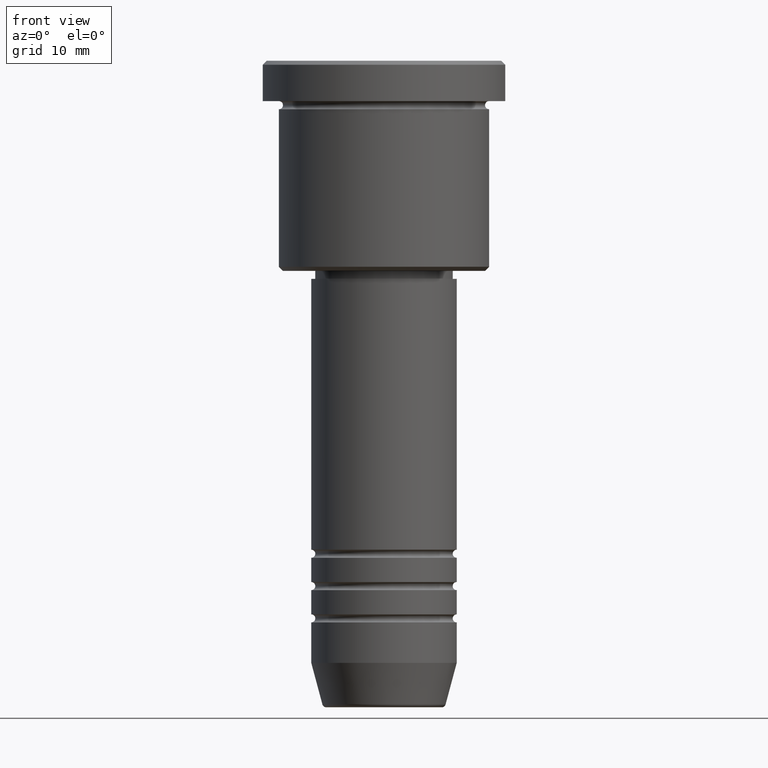
[diagram: clean part render]
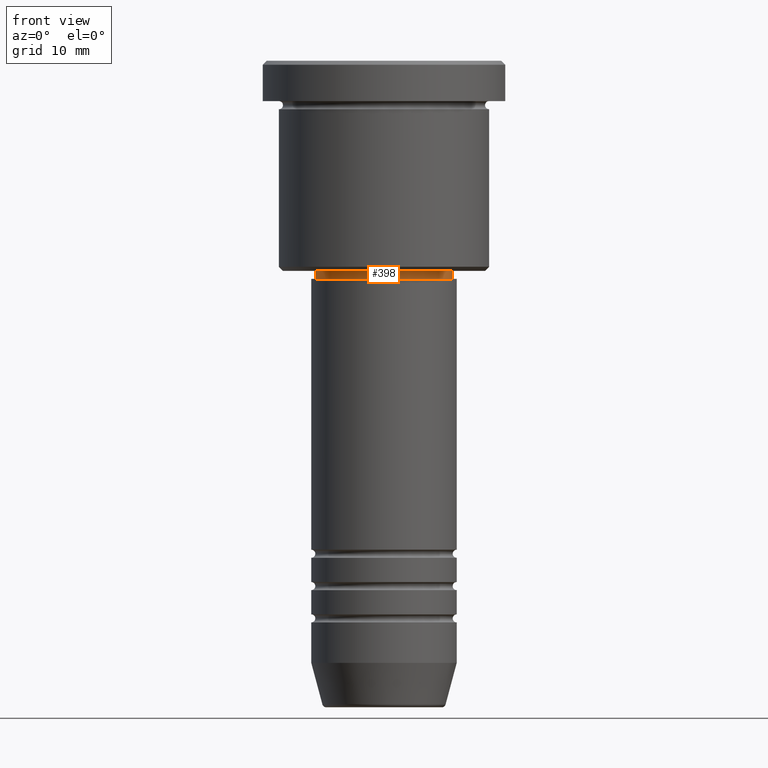
[diagram: same view with one face highlighted and labeled with its STEP entity id]
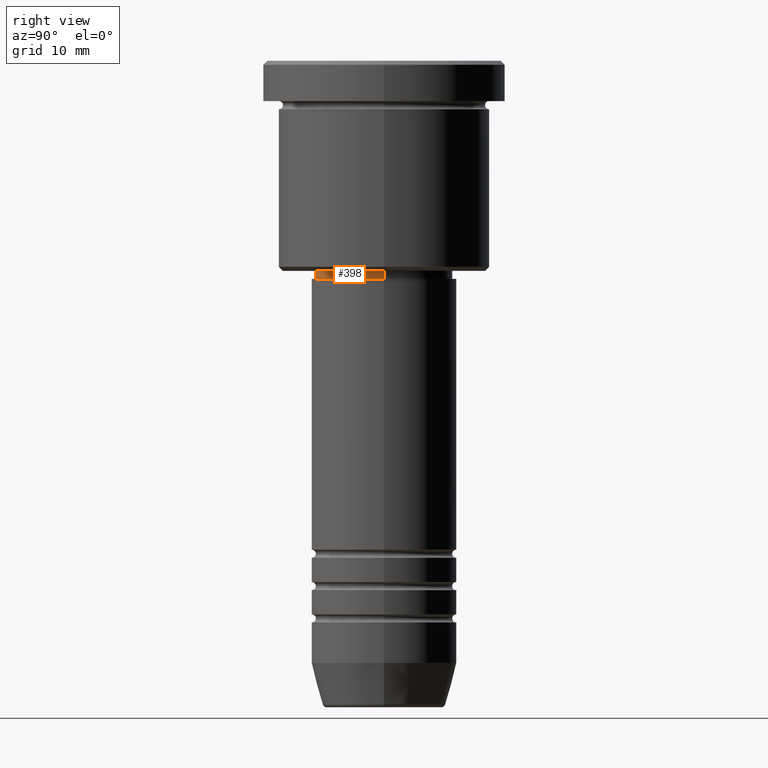
[diagram: same view with one face highlighted and labeled with its STEP entity id]
A machine part, front view. The second image highlights one B-rep face of the part: STEP entity #398.
A second angle (right view) of the same face is appended — the face is thin or edge-on in the first view.
In plain terms, the highlighted cylindrical surface (partial cylindrical patch) has radius 8.5 mm, axis along (-0, -0, 1).
Its self-contained STEP definition (entity closure, byte-faithful):
#59 = EDGE_CURVE ( 'NONE', #518, #801, #673, .T. ) ;
#89 = DIRECTION ( 'NONE',  ( -0.000000000000000000, -0.000000000000000000, 1.000000000000000000 ) ) ;
#146 = CARTESIAN_POINT ( 'NONE',  ( -8.500000000000000000, 1.040949779275250140E-15, 0.000000000000000000 ) ) ;
#185 = CARTESIAN_POINT ( 'NONE',  ( 0.000000000000000000, 0.000000000000000000, -26.00000000000000000 ) ) ;
#240 = ORIENTED_EDGE ( 'NONE', *, *, #59, .F. ) ;
#257 = ORIENTED_EDGE ( 'NONE', *, *, #527, .F. ) ;
#260 = VERTEX_POINT ( 'NONE', #874 ) ;
#288 = AXIS2_PLACEMENT_3D ( 'NONE', #710, #89, #461 ) ;
#295 = EDGE_CURVE ( 'NONE', #472, #801, #596, .T. ) ;
#313 = CIRCLE ( 'NONE', #571, 8.499999999999998224 ) ;
#316 = DIRECTION ( 'NONE',  ( -0.000000000000000000, -0.000000000000000000, 1.000000000000000000 ) ) ;
#335 = LINE ( 'NONE', #146, #460 ) ;
#398 = ADVANCED_FACE ( 'NONE', ( #625 ), #630, .T. ) ;
#417 = CARTESIAN_POINT ( 'NONE',  ( -8.500000000000000000, 1.040949779275250140E-15, -26.00000000000000000 ) ) ;
#426 = CARTESIAN_POINT ( 'NONE',  ( 0.000000000000000000, 0.000000000000000000, -27.00000000000000355 ) ) ;
#460 = VECTOR ( 'NONE', #1062, 1000.000000000000000 ) ;
#461 = DIRECTION ( 'NONE',  ( 1.000000000000000000, 0.000000000000000000, 0.000000000000000000 ) ) ;
#472 = VERTEX_POINT ( 'NONE', #994 ) ;
#518 = VERTEX_POINT ( 'NONE', #417 ) ;
#520 = EDGE_CURVE ( 'NONE', #260, #472, #313, .T. ) ;
#527 = EDGE_CURVE ( 'NONE', #260, #518, #335, .T. ) ;
#571 = AXIS2_PLACEMENT_3D ( 'NONE', #426, #611, #692 ) ;
#596 = LINE ( 'NONE', #1140, #1153 ) ;
#611 = DIRECTION ( 'NONE',  ( -0.000000000000000000, -0.000000000000000000, 1.000000000000000000 ) ) ;
#625 = FACE_OUTER_BOUND ( 'NONE', #979, .T. ) ;
#630 = CYLINDRICAL_SURFACE ( 'NONE', #288, 8.500000000000000000 ) ;
#673 = CIRCLE ( 'NONE', #1070, 8.500000000000000000 ) ;
#692 = DIRECTION ( 'NONE',  ( 1.000000000000000000, 0.000000000000000000, 0.000000000000000000 ) ) ;
#710 = CARTESIAN_POINT ( 'NONE',  ( 0.000000000000000000, 0.000000000000000000, 0.000000000000000000 ) ) ;
#789 = ORIENTED_EDGE ( 'NONE', *, *, #295, .T. ) ;
#801 = VERTEX_POINT ( 'NONE', #820 ) ;
#820 = CARTESIAN_POINT ( 'NONE',  ( 8.500000000000000000, 0.000000000000000000, -26.00000000000000000 ) ) ;
#829 = DIRECTION ( 'NONE',  ( 1.000000000000000000, 0.000000000000000000, 0.000000000000000000 ) ) ;
#874 = CARTESIAN_POINT ( 'NONE',  ( -8.499999999999998224, 1.040949779275249943E-15, -27.00000000000000355 ) ) ;
#912 = DIRECTION ( 'NONE',  ( -0.000000000000000000, -0.000000000000000000, 1.000000000000000000 ) ) ;
#979 = EDGE_LOOP ( 'NONE', ( #257, #1006, #789, #240 ) ) ;
#994 = CARTESIAN_POINT ( 'NONE',  ( 8.499999999999998224, 0.000000000000000000, -27.00000000000000355 ) ) ;
#1006 = ORIENTED_EDGE ( 'NONE', *, *, #520, .T. ) ;
#1062 = DIRECTION ( 'NONE',  ( -0.000000000000000000, -0.000000000000000000, 1.000000000000000000 ) ) ;
#1070 = AXIS2_PLACEMENT_3D ( 'NONE', #185, #912, #829 ) ;
#1140 = CARTESIAN_POINT ( 'NONE',  ( 8.500000000000000000, 0.000000000000000000, 0.000000000000000000 ) ) ;
#1153 = VECTOR ( 'NONE', #316, 1000.000000000000000 ) ;